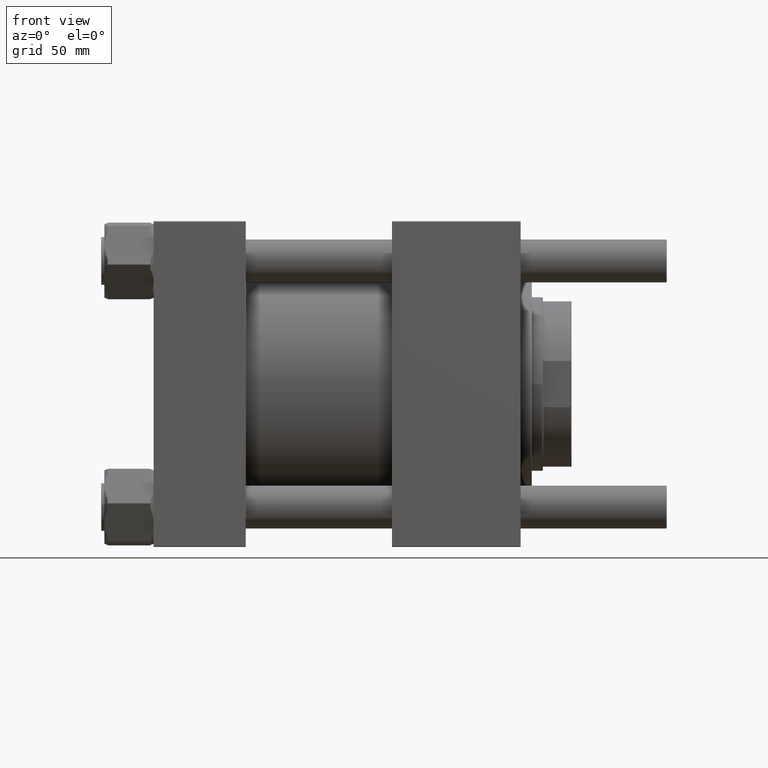
[diagram: clean part render]
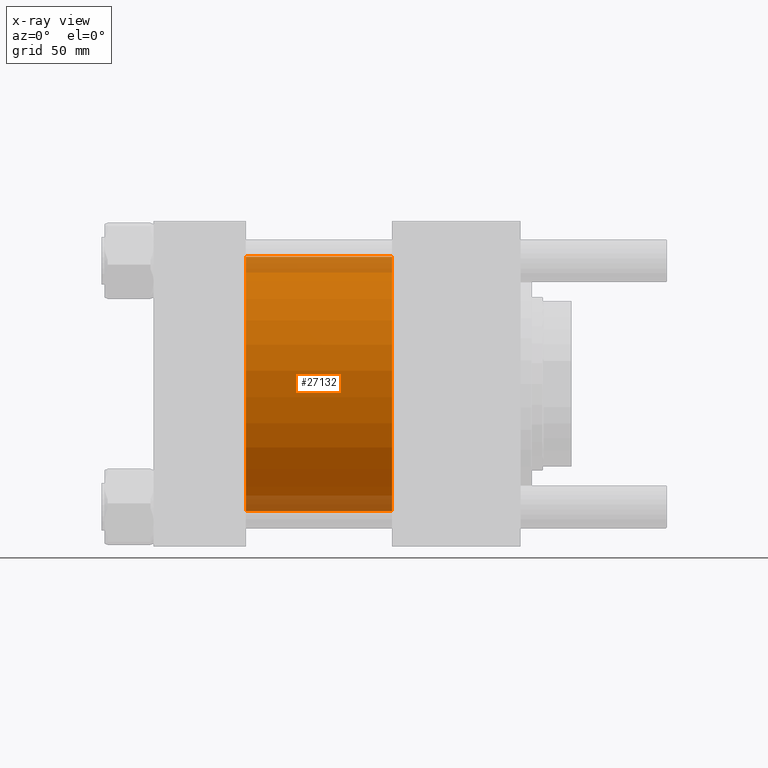
[diagram: x-ray — body ghosted, one internal face saturated and labeled with its STEP entity id]
A machine part, front view, then the same camera in x-ray: the body is ghosted and one INTERNAL B-rep face — a face not visible from any outside direction — is saturated and labeled: STEP entity #27132.
In plain terms, the highlighted cylindrical surface (partial cylindrical patch) has radius 80 mm, axis along (-1, -0, -0).
Its self-contained STEP definition (entity closure, byte-faithful):
#5566 = DIRECTION ( 'NONE',  ( 0.000000000000000000, 0.000000000000000000, -1.000000000000000000 ) ) ;
#6888 = VERTEX_POINT ( 'NONE', #36873 ) ;
#8463 = CIRCLE ( 'NONE', #48260, 80.00000000000000000 ) ;
#8779 = CARTESIAN_POINT ( 'NONE',  ( 150.0000000000000000, -2.602085213965210642E-15, 80.00000000000000000 ) ) ;
#9069 = CARTESIAN_POINT ( 'NONE',  ( 150.0000000000000000, -2.602085213965210642E-15, 80.00000000000000000 ) ) ;
#11421 = DIRECTION ( 'NONE',  ( 1.000000000000000000, 0.000000000000000000, 0.000000000000000000 ) ) ;
#11713 = DIRECTION ( 'NONE',  ( 0.000000000000000000, 0.000000000000000000, -1.000000000000000000 ) ) ;
#12709 = AXIS2_PLACEMENT_3D ( 'NONE', #24854, #15862, #46865 ) ;
#14564 = LINE ( 'NONE', #9069, #43600 ) ;
#15393 = DIRECTION ( 'NONE',  ( 1.000000000000000000, 0.000000000000000000, 0.000000000000000000 ) ) ;
#15862 = DIRECTION ( 'NONE',  ( -1.000000000000000000, -0.000000000000000000, -0.000000000000000000 ) ) ;
#16048 = ORIENTED_EDGE ( 'NONE', *, *, #44099, .F. ) ;
#16163 = ORIENTED_EDGE ( 'NONE', *, *, #47522, .F. ) ;
#21543 = VERTEX_POINT ( 'NONE', #38910 ) ;
#21563 = DIRECTION ( 'NONE',  ( -1.000000000000000000, -0.000000000000000000, -0.000000000000000000 ) ) ;
#23066 = EDGE_LOOP ( 'NONE', ( #32239, #32321, #16163, #16048 ) ) ;
#24854 = CARTESIAN_POINT ( 'NONE',  ( 150.0000000000000000, -2.602085213965210642E-15, 0.000000000000000000 ) ) ;
#27009 = CIRCLE ( 'NONE', #31643, 80.00000000000000000 ) ;
#27132 = ADVANCED_FACE ( 'NONE', ( #38459 ), #33834, .F. ) ;
#31643 = AXIS2_PLACEMENT_3D ( 'NONE', #46113, #15393, #5566 ) ;
#32239 = ORIENTED_EDGE ( 'NONE', *, *, #49739, .T. ) ;
#32321 = ORIENTED_EDGE ( 'NONE', *, *, #53401, .T. ) ;
#33834 = CYLINDRICAL_SURFACE ( 'NONE', #12709, 80.00000000000000000 ) ;
#34662 = VERTEX_POINT ( 'NONE', #39183 ) ;
#36873 = CARTESIAN_POINT ( 'NONE',  ( 58.00000000000000000, -2.602085213965210642E-15, 80.00000000000000000 ) ) ;
#38459 = FACE_OUTER_BOUND ( 'NONE', #23066, .T. ) ;
#38910 = CARTESIAN_POINT ( 'NONE',  ( 58.00000000000000000, 7.195089179213615410E-15, -80.00000000000000000 ) ) ;
#39183 = CARTESIAN_POINT ( 'NONE',  ( 150.0000000000000000, 7.195089179213615410E-15, -80.00000000000000000 ) ) ;
#40935 = DIRECTION ( 'NONE',  ( -1.000000000000000000, -0.000000000000000000, -0.000000000000000000 ) ) ;
#41102 = VECTOR ( 'NONE', #21563, 1000.000000000000000 ) ;
#41590 = CARTESIAN_POINT ( 'NONE',  ( 150.0000000000000000, -2.602085213965210642E-15, 0.000000000000000000 ) ) ;
#43600 = VECTOR ( 'NONE', #40935, 1000.000000000000000 ) ;
#44099 = EDGE_CURVE ( 'NONE', #47758, #6888, #14564, .T. ) ;
#46113 = CARTESIAN_POINT ( 'NONE',  ( 58.00000000000000000, -2.602085213965210642E-15, 0.000000000000000000 ) ) ;
#46865 = DIRECTION ( 'NONE',  ( 0.000000000000000000, 0.000000000000000000, 1.000000000000000000 ) ) ;
#47522 = EDGE_CURVE ( 'NONE', #6888, #21543, #27009, .T. ) ;
#47758 = VERTEX_POINT ( 'NONE', #8779 ) ;
#47929 = CARTESIAN_POINT ( 'NONE',  ( 150.0000000000000000, 7.195089179213615410E-15, -80.00000000000000000 ) ) ;
#48260 = AXIS2_PLACEMENT_3D ( 'NONE', #41590, #11421, #11713 ) ;
#49739 = EDGE_CURVE ( 'NONE', #47758, #34662, #8463, .T. ) ;
#52271 = LINE ( 'NONE', #47929, #41102 ) ;
#53401 = EDGE_CURVE ( 'NONE', #34662, #21543, #52271, .T. ) ;